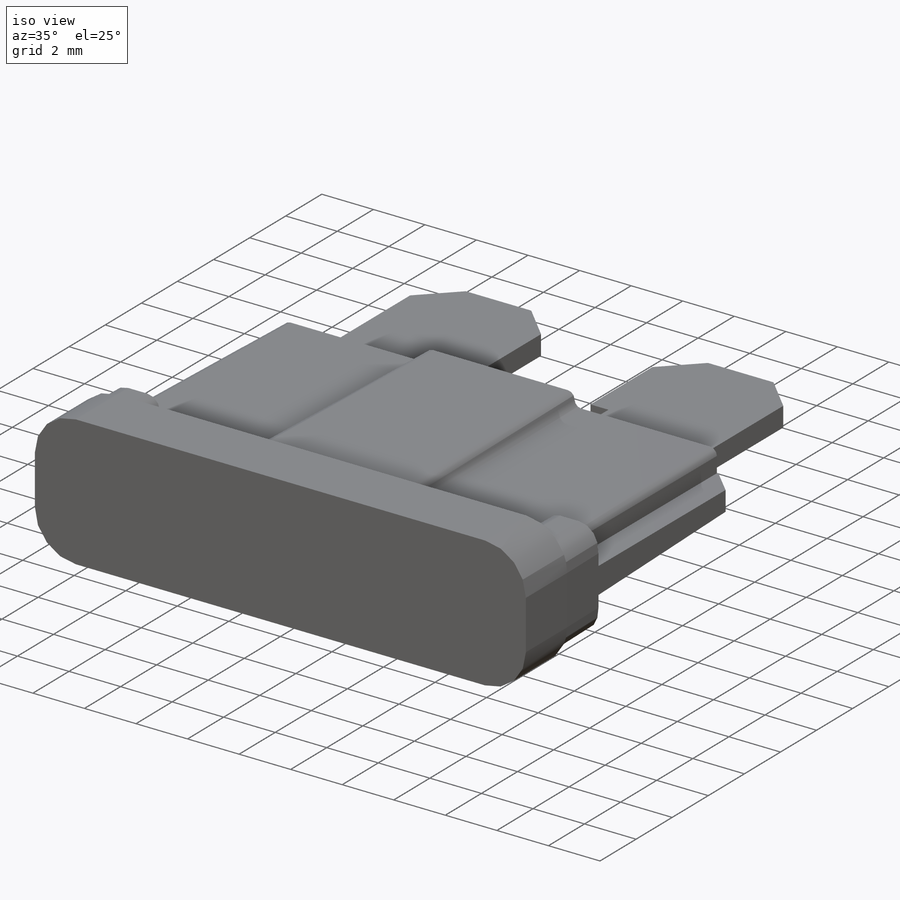
[diagram: iso view]
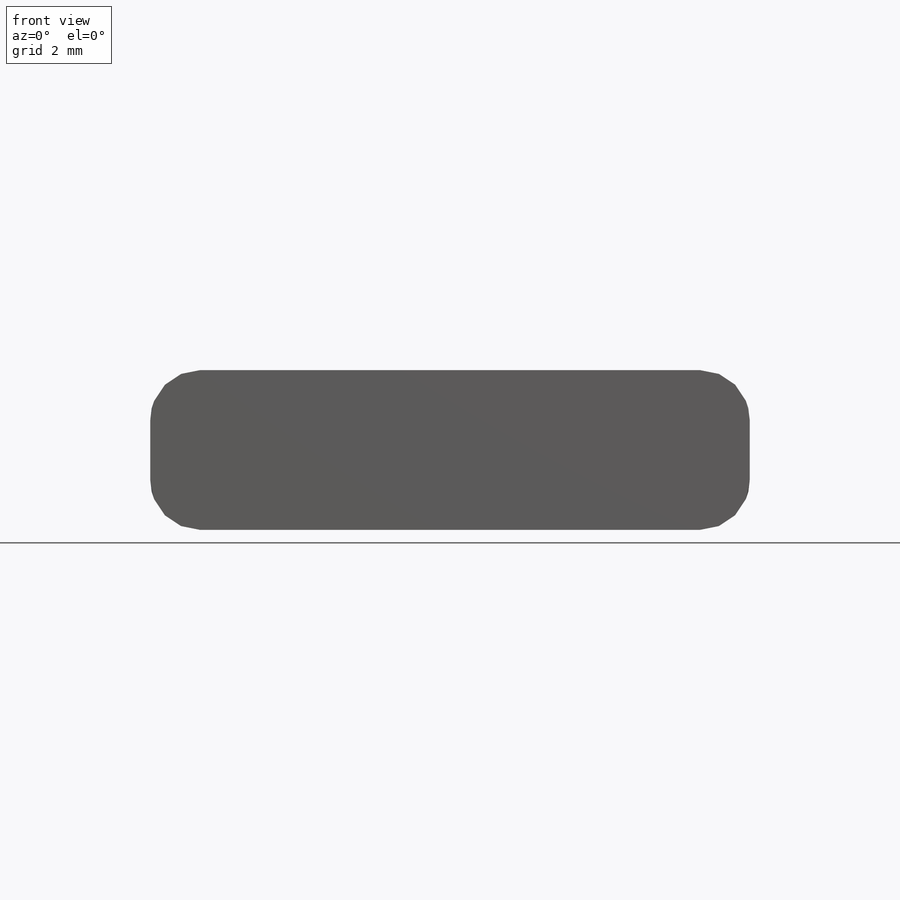
[diagram: front view]
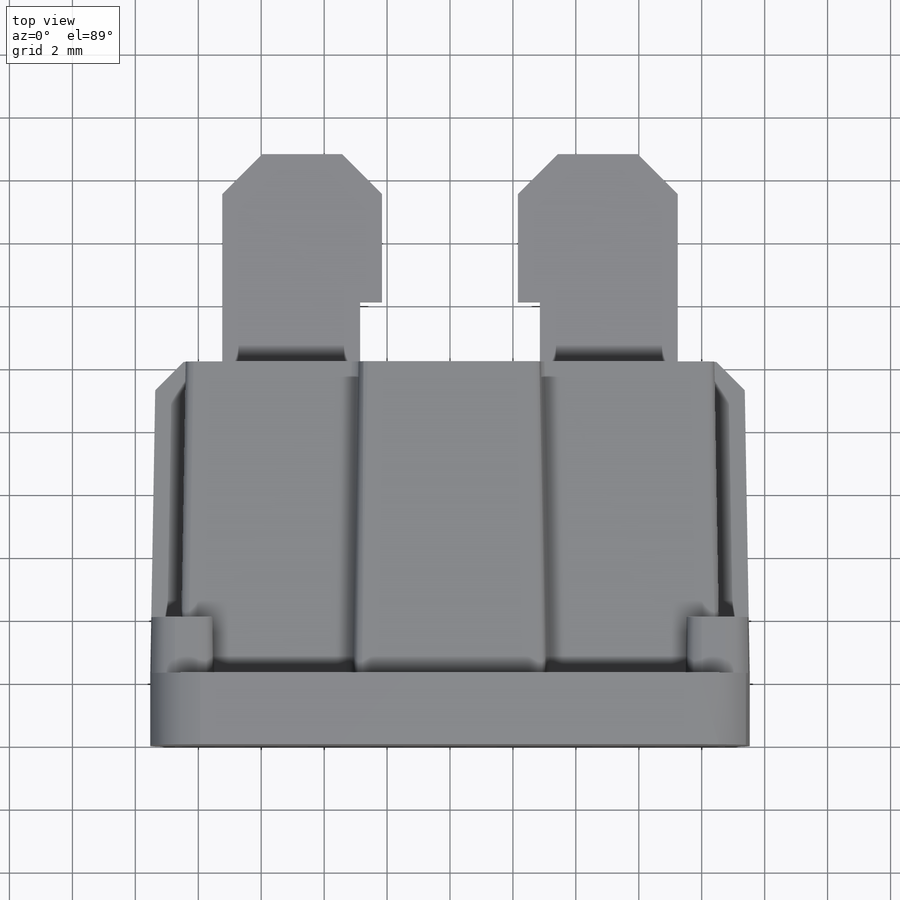
[diagram: top view]
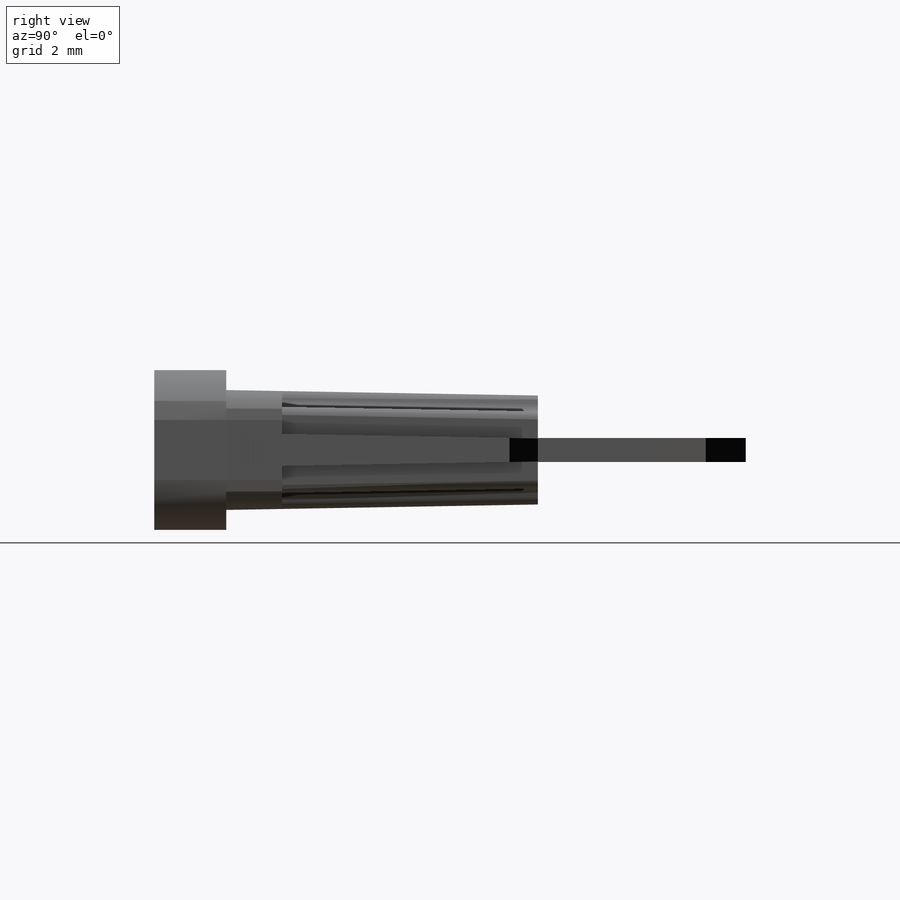
[diagram: right view]
SOLIDWORKS PART (.sldprt)
format: sldprt  version: not decoded by parser v0  size: 422,400 bytes
history: native  units: mm
features: sketch x6, extrude x5, plane x3, fillet x2, material x1, chamfer x1, cut_extrude x1 (+8 scaffold rows collapsed)
feature tree (27):
  scaffold x8  (default folders/planes/origin — collapsed)
  material  "Material <nicht festgelegt>"
  plane  "Plane1"
  plane  "Plane2"
  plane  "Plane3"
  sketch  "Sketch1"  dims[D1=19.05mm D2=5.08mm]
  extrude  "Base-Extrude"  Depth=2.286mm
  fillet  "Fillet1"  Radius=1.5875mm
  sketch  "Sketch2"  dims[D1=3.81mm D2=6.096mm D3=17.145mm D4=2.794mm]
  extrude  "Boss-Extrude3"  Depth=12.192mm
  fillet  "Fillet4"  Radius=0.254mm
  sketch  "Sketch3"  dims[D1=0.762mm D4=0.508mm D2=3.81mm D3=2.032mm]
  extrude  "Boss-Extrude4"  Depth=1.778mm
  sketch  "Sketch5"  dims[D1=1.016mm]
  extrude  "Boss-Extrude6"  [1 undecoded]
  chamfer  "Chamfer1"  Distance=0.889mm Angle=45deg
  sketch  "Sketch6"  dims[c1.D1=14.478mm c1.D2=18.796mm c1.D3=~2.519027mm c2.D3=45.0deg c2.D4=1.27mm c2.D5=~1.796051mm c3.D5=45.0deg c4.D5=5.08mm c4.D6=5.715mm c4.D7=1.905mm]
  extrude  "Blades"  Depth=0.762mm
  sketch  "Skizze1"
  cut_extrude  "Schnitt-Linear austragen1"  Depth=0.05mm
decode coverage: 13 of 15 modeling features carry decoded parameters
note: ~ marks probable driven/reference dimensions
note: 1 parameter value undecoded
note: suppression state not decoded; provenance and decode notes live in map.json
